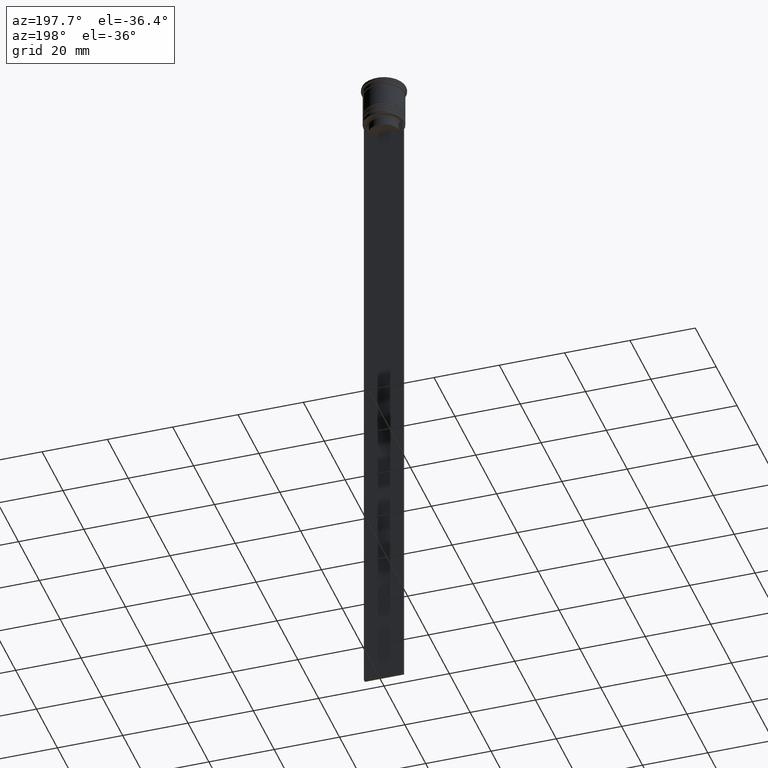
[diagram: clean part render]
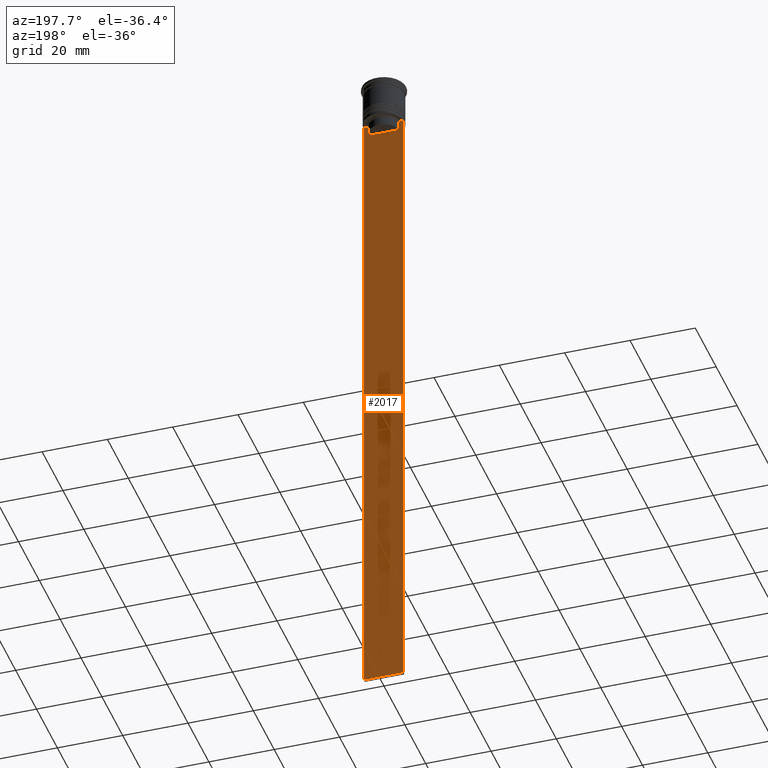
[diagram: same view with one face highlighted and labeled with its STEP entity id]
A machine part, auxiliary view. The second image highlights one B-rep face of the part: STEP entity #2017.
In plain terms, the highlighted planar face has unit normal (0, -1, -0).
Its self-contained STEP definition (entity closure, byte-faithful):
#8 = LINE ( 'NONE', #1453, #1738 ) ;
#15 = CARTESIAN_POINT ( 'NONE',  ( 6.000000000000016875, 0.4999999999999982792, -12.50000000000000000 ) ) ;
#31 = PLANE ( 'NONE',  #528 ) ;
#76 = EDGE_CURVE ( 'NONE', #353, #525, #2116, .T. ) ;
#84 = CARTESIAN_POINT ( 'NONE',  ( 5.125670687822231564, 0.4999999999999982792, -12.50000000000000000 ) ) ;
#108 = VERTEX_POINT ( 'NONE', #2103 ) ;
#128 = CARTESIAN_POINT ( 'NONE',  ( -5.999999999999983125, 0.4999999999999985012, -12.50000000000000000 ) ) ;
#159 = ORIENTED_EDGE ( 'NONE', *, *, #1768, .T. ) ;
#179 = EDGE_CURVE ( 'NONE', #525, #688, #1187, .T. ) ;
#291 = EDGE_CURVE ( 'NONE', #626, #1605, #805, .T. ) ;
#306 = VERTEX_POINT ( 'NONE', #412 ) ;
#308 = ORIENTED_EDGE ( 'NONE', *, *, #2095, .T. ) ;
#353 = VERTEX_POINT ( 'NONE', #128 ) ;
#368 = ORIENTED_EDGE ( 'NONE', *, *, #1580, .T. ) ;
#410 = VERTEX_POINT ( 'NONE', #465 ) ;
#412 = CARTESIAN_POINT ( 'NONE',  ( -5.999999999999983125, 0.4999999999999982792, -212.5000000000000284 ) ) ;
#425 = CARTESIAN_POINT ( 'NONE',  ( 4.958169719475987058, 0.4999999999999982792, -12.66670967060858111 ) ) ;
#465 = CARTESIAN_POINT ( 'NONE',  ( 4.623040125285526436, 0.4999999999999982792, -13.00000000000000178 ) ) ;
#509 = ORIENTED_EDGE ( 'NONE', *, *, #291, .T. ) ;
#525 = VERTEX_POINT ( 'NONE', #1070 ) ;
#528 = AXIS2_PLACEMENT_3D ( 'NONE', #2193, #753, #1408 ) ;
#563 = VECTOR ( 'NONE', #1123, 1000.000000000000000 ) ;
#582 = CARTESIAN_POINT ( 'NONE',  ( 6.000000000000016875, 0.4999999999999982792, -0.4584054212077061097 ) ) ;
#608 = DIRECTION ( 'NONE',  ( 0.000000000000000000, 0.000000000000000000, -1.000000000000000000 ) ) ;
#625 = CARTESIAN_POINT ( 'NONE',  ( -4.958169823806762189, 0.4999999999999982792, -12.66670956677067750 ) ) ;
#626 = VERTEX_POINT ( 'NONE', #2322 ) ;
#688 = VERTEX_POINT ( 'NONE', #1414 ) ;
#753 = DIRECTION ( 'NONE',  ( 0.000000000000000000, -1.000000000000000000, -0.000000000000000000 ) ) ;
#805 = LINE ( 'NONE', #2200, #2043 ) ;
#823 = CARTESIAN_POINT ( 'NONE',  ( 4.790630799407576745, 0.4999999999999982792, -12.83338098686239093 ) ) ;
#834 = DIRECTION ( 'NONE',  ( -0.000000000000000000, -0.000000000000000000, 1.000000000000000000 ) ) ;
#878 = CARTESIAN_POINT ( 'NONE',  ( 0.000000000000000000, 0.4999999999999987232, -15.50000000000000000 ) ) ;
#998 = CARTESIAN_POINT ( 'NONE',  ( 4.623040125285526436, 0.4999999999999982792, 0.000000000000000000 ) ) ;
#1015 = EDGE_CURVE ( 'NONE', #410, #626, #1162, .T. ) ;
#1037 = VERTEX_POINT ( 'NONE', #1695 ) ;
#1048 = VECTOR ( 'NONE', #834, 1000.000000000000000 ) ;
#1070 = CARTESIAN_POINT ( 'NONE',  ( -5.125670687822231564, 0.4999999999999982792, -12.50000000000000000 ) ) ;
#1106 = VECTOR ( 'NONE', #2243, 1000.000000000000000 ) ;
#1109 = EDGE_CURVE ( 'NONE', #2262, #306, #1962, .T. ) ;
#1123 = DIRECTION ( 'NONE',  ( 0.000000000000000000, 0.000000000000000000, -1.000000000000000000 ) ) ;
#1139 = CARTESIAN_POINT ( 'NONE',  ( -4.790630915080666519, 0.4999999999999982792, -12.83338087185995313 ) ) ;
#1162 = B_SPLINE_CURVE_WITH_KNOTS ( 'NONE', 3,
 ( #1173, #823, #425, #84 ),
 .UNSPECIFIED., .F., .F.,
 ( 4, 4 ),
 ( 0.02203698174624552433, 0.02275222543365896036 ),
 .UNSPECIFIED. ) ;
#1173 = CARTESIAN_POINT ( 'NONE',  ( 4.623040125285526436, 0.4999999999999982792, -13.00000000000000178 ) ) ;
#1187 = B_SPLINE_CURVE_WITH_KNOTS ( 'NONE', 3,
 ( #1493, #625, #1139, #1484 ),
 .UNSPECIFIED., .F., .F.,
 ( 4, 4 ),
 ( 0.008759809102772707357, 0.009468778395565351919 ),
 .UNSPECIFIED. ) ;
#1232 = LINE ( 'NONE', #878, #1327 ) ;
#1250 = DIRECTION ( 'NONE',  ( -1.000000000000000000, 0.000000000000000000, 0.000000000000000000 ) ) ;
#1273 = ORIENTED_EDGE ( 'NONE', *, *, #179, .T. ) ;
#1302 = FACE_OUTER_BOUND ( 'NONE', #1488, .T. ) ;
#1327 = VECTOR ( 'NONE', #1975, 1000.000000000000000 ) ;
#1347 = LINE ( 'NONE', #1535, #1775 ) ;
#1408 = DIRECTION ( 'NONE',  ( 0.000000000000000000, 0.000000000000000000, -1.000000000000000000 ) ) ;
#1414 = CARTESIAN_POINT ( 'NONE',  ( -4.623040125285526436, 0.4999999999999982792, -13.00000000000000178 ) ) ;
#1453 = CARTESIAN_POINT ( 'NONE',  ( -5.999999999999983125, 0.4999999999999982792, -0.4584054212077061097 ) ) ;
#1484 = CARTESIAN_POINT ( 'NONE',  ( -4.623040125285526436, 0.4999999999999982792, -13.00000000000000178 ) ) ;
#1488 = EDGE_LOOP ( 'NONE', ( #1878, #1273, #159, #308, #2093, #2313, #509, #368, #2020, #1963 ) ) ;
#1493 = CARTESIAN_POINT ( 'NONE',  ( -5.125670687822231564, 0.4999999999999982792, -12.50000000000000000 ) ) ;
#1501 = VECTOR ( 'NONE', #1250, 1000.000000000000000 ) ;
#1528 = DIRECTION ( 'NONE',  ( 1.000000000000000000, 0.000000000000000000, 0.000000000000000000 ) ) ;
#1535 = CARTESIAN_POINT ( 'NONE',  ( -4.623040125285526436, 0.4999999999999982792, 0.000000000000000000 ) ) ;
#1580 = EDGE_CURVE ( 'NONE', #1605, #2262, #1649, .T. ) ;
#1605 = VERTEX_POINT ( 'NONE', #15 ) ;
#1649 = LINE ( 'NONE', #582, #563 ) ;
#1695 = CARTESIAN_POINT ( 'NONE',  ( -4.623040125285526436, 0.4999999999999987232, -15.50000000000000000 ) ) ;
#1721 = CARTESIAN_POINT ( 'NONE',  ( 6.000000000000016875, 0.4999999999999982792, -212.5000000000000284 ) ) ;
#1733 = LINE ( 'NONE', #998, #1048 ) ;
#1738 = VECTOR ( 'NONE', #2171, 1000.000000000000000 ) ;
#1768 = EDGE_CURVE ( 'NONE', #688, #1037, #1347, .T. ) ;
#1775 = VECTOR ( 'NONE', #608, 1000.000000000000000 ) ;
#1788 = CARTESIAN_POINT ( 'NONE',  ( 6.000000000000016875, 0.4999999999999982792, -212.5000000000000284 ) ) ;
#1878 = ORIENTED_EDGE ( 'NONE', *, *, #76, .T. ) ;
#1893 = CARTESIAN_POINT ( 'NONE',  ( 6.000000000000016875, 0.4999999999999982792, -12.50000000000000000 ) ) ;
#1962 = LINE ( 'NONE', #1788, #1501 ) ;
#1963 = ORIENTED_EDGE ( 'NONE', *, *, #1973, .F. ) ;
#1973 = EDGE_CURVE ( 'NONE', #353, #306, #8, .T. ) ;
#1975 = DIRECTION ( 'NONE',  ( 1.000000000000000000, 0.000000000000000000, 0.000000000000000000 ) ) ;
#2017 = ADVANCED_FACE ( 'NONE', ( #1302 ), #31, .F. ) ;
#2020 = ORIENTED_EDGE ( 'NONE', *, *, #1109, .T. ) ;
#2043 = VECTOR ( 'NONE', #1528, 1000.000000000000000 ) ;
#2093 = ORIENTED_EDGE ( 'NONE', *, *, #2229, .T. ) ;
#2095 = EDGE_CURVE ( 'NONE', #1037, #108, #1232, .T. ) ;
#2103 = CARTESIAN_POINT ( 'NONE',  ( 4.623040125285526436, 0.4999999999999987232, -15.50000000000000000 ) ) ;
#2116 = LINE ( 'NONE', #1893, #1106 ) ;
#2171 = DIRECTION ( 'NONE',  ( 0.000000000000000000, 0.000000000000000000, -1.000000000000000000 ) ) ;
#2193 = CARTESIAN_POINT ( 'NONE',  ( 6.000000000000016875, 0.4999999999999982792, -0.4584054212077061097 ) ) ;
#2200 = CARTESIAN_POINT ( 'NONE',  ( 6.000000000000016875, 0.4999999999999982792, -12.50000000000000000 ) ) ;
#2229 = EDGE_CURVE ( 'NONE', #108, #410, #1733, .T. ) ;
#2243 = DIRECTION ( 'NONE',  ( 1.000000000000000000, 0.000000000000000000, 0.000000000000000000 ) ) ;
#2262 = VERTEX_POINT ( 'NONE', #1721 ) ;
#2313 = ORIENTED_EDGE ( 'NONE', *, *, #1015, .T. ) ;
#2322 = CARTESIAN_POINT ( 'NONE',  ( 5.125670687822231564, 0.4999999999999982792, -12.50000000000000000 ) ) ;